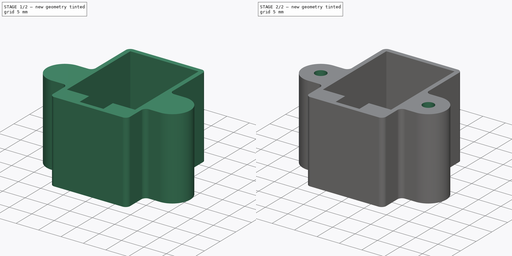
[diagram: build sequence overview — one tinted view per stage of 2, left to right]
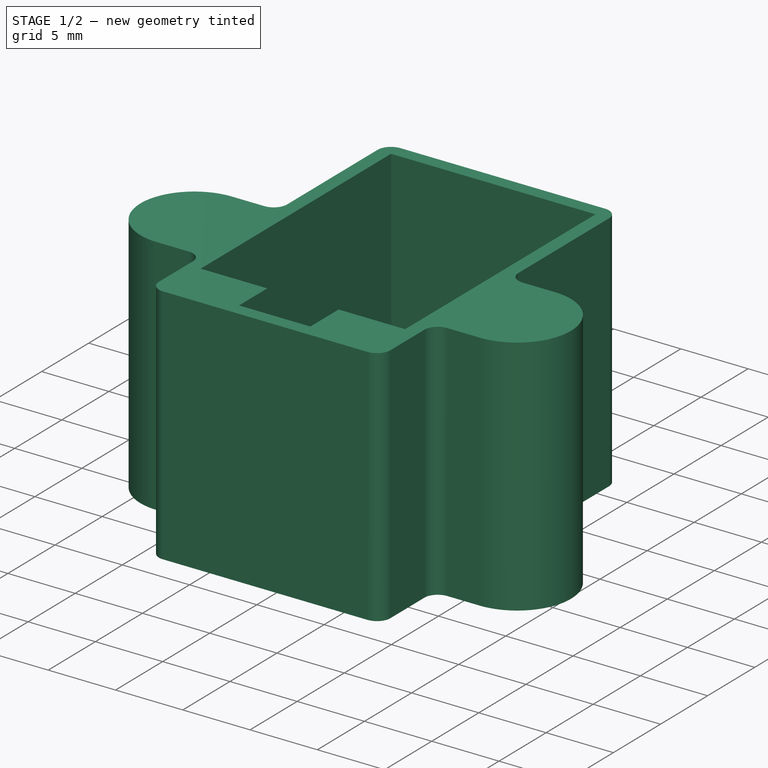
[diagram: stage 1 of 2 — iso view after this stage's code; geometry added in this stage tinted green]
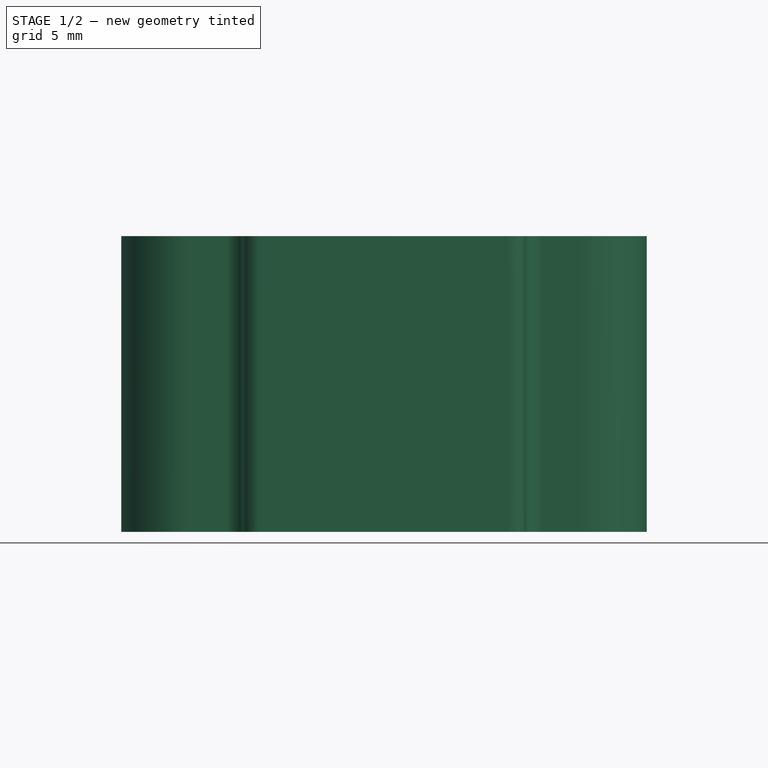
[diagram: stage 1 of 2 — front view after this stage's code; geometry added in this stage tinted green]
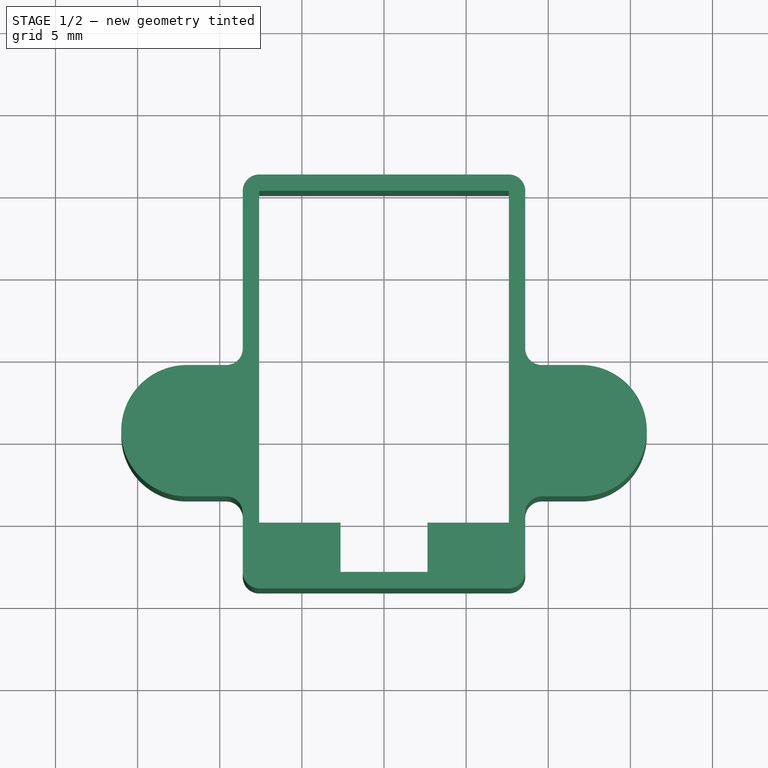
[diagram: stage 1 of 2 — top view after this stage's code; geometry added in this stage tinted green]
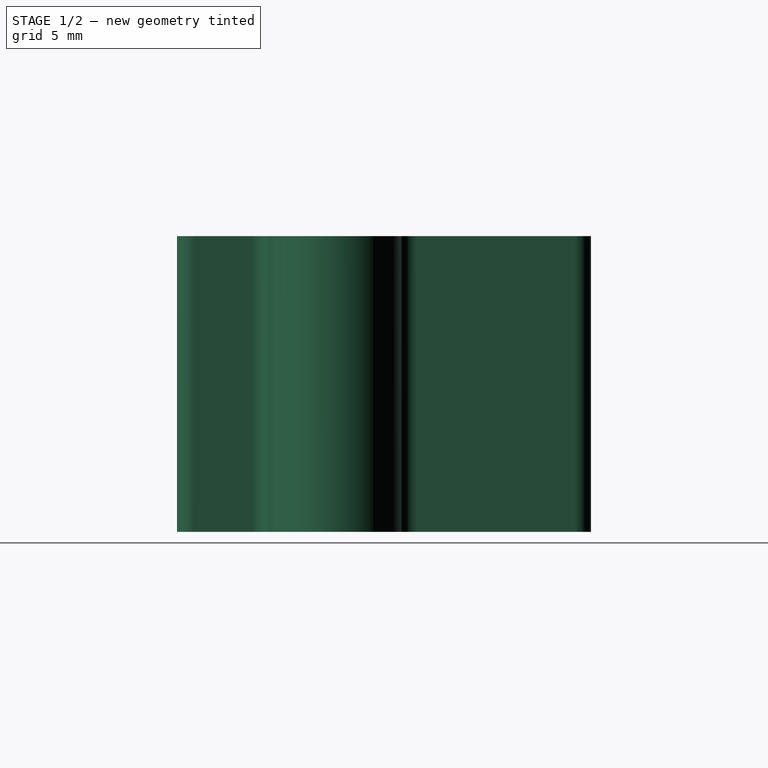
[diagram: stage 1 of 2 — right view after this stage's code; geometry added in this stage tinted green]
FCSTD DOCUMENT  (FreeCAD 0.16R6706 (Git))
Label: Guide-Prise-001
License: All rights reserved
LicenseURL: http://en.wikipedia.org/wiki/All_rights_reserved
objects: Part::Feature×2, Sketcher::SketchObject×2, PartDesign::Pad×1, PartDesign::Pocket×1
note: 8 computed .brp shape members not serialized (recipe doc carries the construction recipe); baked Part::Feature solids carry a one-line shape summary decoded from their .brp

FEATURE [Part::Feature] Part__Feature  label="Fusion005"
  Placement = pos=(-14,-27.5,0) rot=(0,0,1;0rad)
  shape: bbox 94.66 x 83.39 x 5.3 mm, 360 faces (baked)
FEATURE [Sketcher::SketchObject] Sketch005  label="ISP-6"
  Placement = pos=(0,0,11.45) rot=(0,0,1;0rad)
  sketch-geometry (32):
    g0: LineSegment StartX=-7.6 StartY=10.1 StartZ=0 EndX=-7.6 EndY=-10.1 EndZ=0
    g1: LineSegment StartX=-7.6 StartY=-10.1 StartZ=0 EndX=-2.65 EndY=-10.1 EndZ=0
    g2: LineSegment StartX=-2.65 StartY=-10.1 StartZ=0 EndX=-2.65 EndY=-13.1 EndZ=0
    g3: LineSegment StartX=-2.65 StartY=-13.1 StartZ=0 EndX=2.65 EndY=-13.1 EndZ=0
    g4: LineSegment StartX=2.65 StartY=-13.1 StartZ=0 EndX=2.65 EndY=-10.1 EndZ=0
    g5: LineSegment StartX=2.65 StartY=-10.1 StartZ=0 EndX=7.6 EndY=-10.1 EndZ=0
    g6: LineSegment StartX=7.6 StartY=-10.1 StartZ=0 EndX=7.6 EndY=10.1 EndZ=0
    g7: LineSegment StartX=7.6 StartY=10.1 StartZ=0 EndX=-7.6 EndY=10.1 EndZ=0
    g8: Circle [constr] CenterX=0 CenterY=0 CenterZ=0 NormalX=0 NormalY=0 NormalZ=1 Radius=12.64
    g9: LineSegment StartX=-7.6 StartY=11.1 StartZ=0 EndX=7.6 EndY=11.1 EndZ=0
    g10: LineSegment StartX=8.6 StartY=10.1 StartZ=0 EndX=8.6 EndY=0.5 EndZ=0
    g11: LineSegment StartX=-8.6 StartY=0.5 StartZ=0 EndX=-8.6 EndY=10.1 EndZ=0
    g12: LineSegment [constr] StartX=-12 StartY=-4.5 StartZ=0 EndX=12 EndY=-4.5 EndZ=0
    g13: ArcOfCircle CenterX=-12 CenterY=-4.5 CenterZ=0 NormalX=0 NormalY=0 NormalZ=1 Radius=4 StartAngle=1.5708 EndAngle=4.71239
    g14: ArcOfCircle CenterX=12 CenterY=-4.5 CenterZ=0 NormalX=0 NormalY=0 NormalZ=1 Radius=4 StartAngle=4.71239 EndAngle=7.85398
    g15: LineSegment StartX=-12 StartY=-0.5 StartZ=0 EndX=-9.6 EndY=-0.5 EndZ=0
    g16: LineSegment StartX=9.6 StartY=-0.5 StartZ=0 EndX=12 EndY=-0.5 EndZ=0
    g17: LineSegment StartX=-12 StartY=-8.5 StartZ=0 EndX=-9.6 EndY=-8.5 EndZ=0
    g18: LineSegment StartX=-8.6 StartY=-9.5 StartZ=0 EndX=-8.6 EndY=-13.1 EndZ=0
    g19: LineSegment StartX=-7.6 StartY=-14.1 StartZ=0 EndX=7.6 EndY=-14.1 EndZ=0
    g20: LineSegment StartX=8.6 StartY=-13.1 StartZ=0 EndX=8.6 EndY=-9.5 EndZ=0
    g21: LineSegment StartX=9.6 StartY=-8.5 StartZ=0 EndX=12 EndY=-8.5 EndZ=0
    g22: ArcOfCircle CenterX=-9.6 CenterY=0.5 CenterZ=0 NormalX=0 NormalY=0 NormalZ=1 Radius=1 StartAngle=4.71239 EndAngle=6.28319
    g23: ArcOfCircle CenterX=9.6 CenterY=0.5 CenterZ=0 NormalX=0 NormalY=0 NormalZ=1 Radius=1 StartAngle=3.14159 EndAngle=4.71239
    g24: ArcOfCircle CenterX=9.6 CenterY=-9.5 CenterZ=0 NormalX=0 NormalY=0 NormalZ=1 Radius=1 StartAngle=1.5708 EndAngle=3.14159
    g25: ArcOfCircle CenterX=7.6 CenterY=-13.1 CenterZ=0 NormalX=0 NormalY=0 NormalZ=1 Radius=1 StartAngle=4.71239 EndAngle=6.28319
    g26: ArcOfCircle CenterX=-7.6 CenterY=-13.1 CenterZ=0 NormalX=0 NormalY=0 NormalZ=1 Radius=1 StartAngle=3.14159 EndAngle=4.71239
    g27: ArcOfCircle CenterX=-9.6 CenterY=-9.5 CenterZ=0 NormalX=0 NormalY=0 NormalZ=1 Radius=1 StartAngle=0 EndAngle=1.5708
    g28: ArcOfCircle CenterX=-7.6 CenterY=10.1 CenterZ=0 NormalX=0 NormalY=0 NormalZ=1 Radius=1 StartAngle=1.5708 EndAngle=3.14159
    g29: ArcOfCircle CenterX=7.6 CenterY=10.1 CenterZ=0 NormalX=0 NormalY=0 NormalZ=1 Radius=1 StartAngle=0 EndAngle=1.5708
    g30: LineSegment [constr] StartX=-7.6 StartY=-10.1 StartZ=0 EndX=-7.6 EndY=-13.1 EndZ=0
    g31: LineSegment [constr] StartX=7.6 StartY=-10.1 StartZ=0 EndX=7.6 EndY=-13.1 EndZ=0
  constraints (82):
    c: Vertical(g0)
    c: Coincident(g0,g1)
    c: Horizontal(g1)
    c: Coincident(g1,g2)
    c: Vertical(g2)
    c: Coincident(g2,g3)
    c: Horizontal(g3)
    c: Coincident(g3,g4)
    c: Vertical(g4)
    c: Coincident(g4,g5)
    c: Horizontal(g5)
    c: Coincident(g5,g6)
    c: Vertical(g6)
    c: Coincident(g6,g7)
    c: Horizontal(g7)
    c: Coincident(g0,g7)
    c: Equal(g5,g1)
    c: Equal(g4,g2)
    c: DistanceY(g4,g4) = 3
    c: DistanceY(g6,g6) = 20.2
    c: DistanceX(g7,g7) = 15.2
    c: DistanceX(g3,g3) = 5.3
    c: PointOnObject(g0,g8)
    c: PointOnObject(g6,g8)
    c: PointOnObject(g5,g8)
    c: Coincident(g8,g-1)
    c: Horizontal(g9)
    c: Vertical(g10)
    c: Vertical(g11)
    c: Horizontal(g12)
    c: DistanceX(g12,g12) = 24
    c: DistanceX(g12) = 12
    c: DistanceY(g12) = -4.5
    c: Coincident(g13,g12)
    c: Coincident(g14,g12)
    c: Horizontal(g15)
    c: Horizontal(g16)
    c: Horizontal(g17)
    c: Horizontal(g21)
    c: Tangent(g21,g14) = -1.5708
    c: Horizontal(g19)
    c: Tangent(g13,g17) = -1.5708
    c: Tangent(g13,g15) = 1.5708
    c: Coincident(g14,g16)
    c: Tangent(g11,g22) = -1.5708
    c: Tangent(g15,g22) = -1.5708
    c: Tangent(g10,g23) = -1.5708
    c: Tangent(g16,g23) = -1.5708
    c: Tangent(g20,g24) = 1.5708
    c: Tangent(g21,g24) = 1.5708
    c: Tangent(g19,g25) = -1.5708
    c: Tangent(g20,g25) = -1.5708
    c: Tangent(g18,g26) = -1.5708
    c: Tangent(g19,g26) = -1.5708
    c: Tangent(g17,g27) = 1.5708
    c: Tangent(g18,g27) = 1.5708
    c: Tangent(g9,g28) = 1.5708
    c: Tangent(g11,g28) = 1.5708
    c: Tangent(g9,g29) = 1.5708
    c: Tangent(g10,g29) = 1.5708
    c: Radius(g28) = 1
    c: Equal(g28,g29)
    c: Equal(g28,g23)
    c: Equal(g28,g22)
    c: Equal(g28,g27)
    c: Equal(g28,g24)
    c: Equal(g28,g25)
    c: Equal(g28,g26)
    c: Coincident(g29,g6)
    c: Coincident(g28,g0)
    c: Vertical(g20)
    c: Vertical(g18)
    c: Coincident(g30,g0)
    c: Coincident(g30,g26)
    c: Coincident(g31,g5)
    c: Coincident(g31,g25)
    c: Vertical(g31)
    c: Vertical(g30)
    c: Equal(g30,g4)
    c: Tangent(g14,g16) = 1.5708
    c: Radius(g14) = 4
    c: Equal(g14,g13)
FEATURE [Part::Feature] Part__Feature001  label="Pocket003"
  Placement = pos=(-14,-27.5,0) rot=(0,0,1;0rad)
  shape: bbox 94.66 x 83.39 x 29 mm, 53 faces (baked)
FEATURE [PartDesign::Pad] Pad
  Length = 18
  Length2 = 100
  Placement = pos=(0,0,11.45) rot=(0,0,1;0rad)
  Sketch = -> Sketch005
  Type = 0
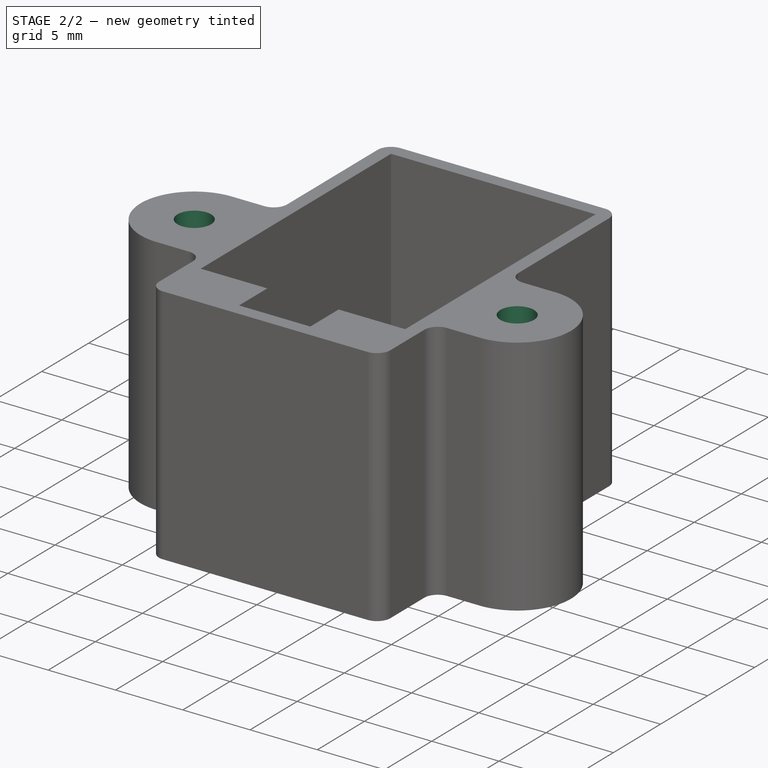
[diagram: stage 2 of 2 — iso view after this stage's code; geometry added in this stage tinted green]
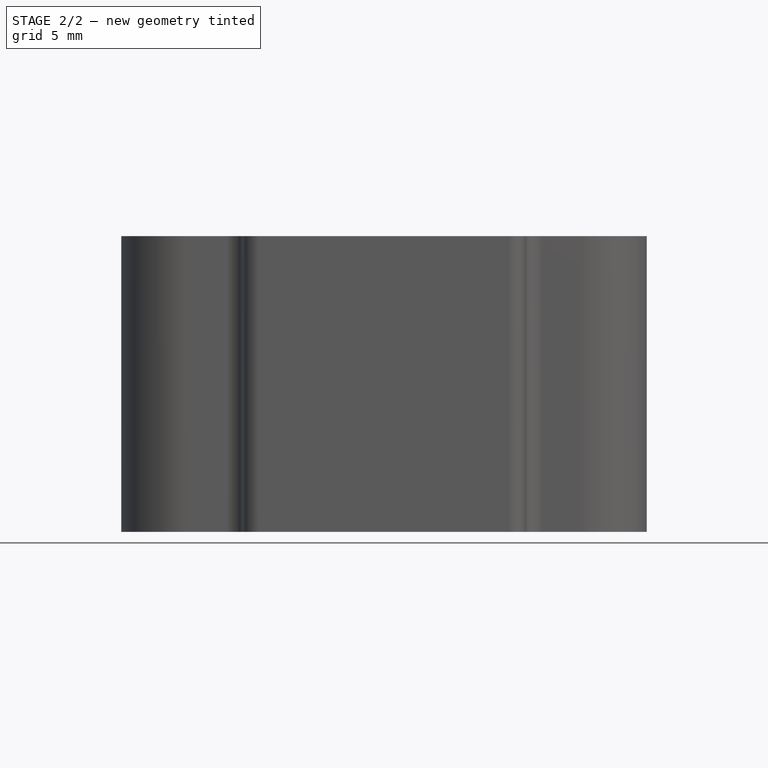
[diagram: stage 2 of 2 — front view after this stage's code; geometry added in this stage tinted green]
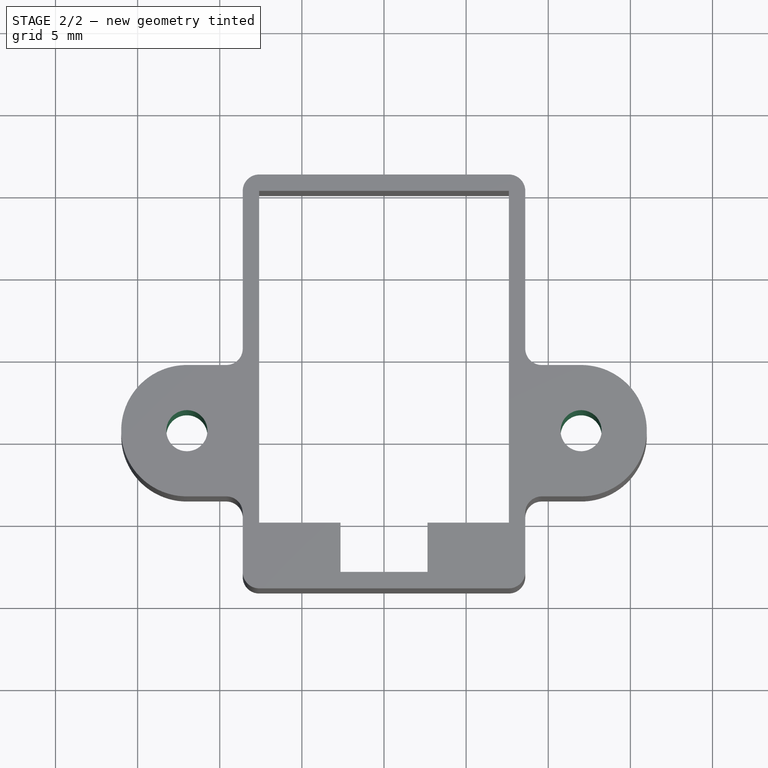
[diagram: stage 2 of 2 — top view after this stage's code; geometry added in this stage tinted green]
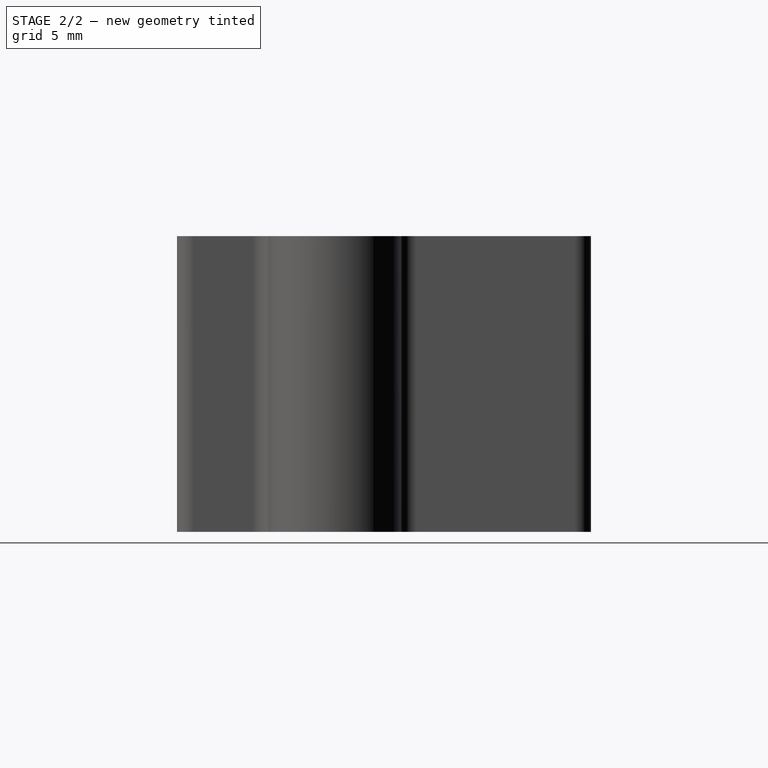
[diagram: stage 2 of 2 — right view after this stage's code; geometry added in this stage tinted green]
FEATURE [Sketcher::SketchObject] Sketch
  Placement = pos=(0,0,29.45) rot=(0,0,1;0rad)
  Support = -> Pad [Face30]
  sketch-geometry (3):
    g0: LineSegment [constr] StartX=-12 StartY=-4.5 StartZ=0 EndX=12 EndY=-4.5 EndZ=0
    g1: Circle CenterX=-12 CenterY=-4.5 CenterZ=0 NormalX=0 NormalY=0 NormalZ=1 Radius=1.25
    g2: Circle CenterX=12 CenterY=-4.5 CenterZ=0 NormalX=0 NormalY=0 NormalZ=1 Radius=1.25
  constraints (8):
    c: Horizontal(g0)
    c: DistanceX(g0) = 12
    c: DistanceY(g0) = -4.5
    c: DistanceX(g0,g0) = 24
    c: Coincident(g1,g0)
    c: Radius(g2) = 1.25
    c: Equal(g2,g1)
    c: Coincident(g0,g2)
FEATURE [PartDesign::Pocket] Pocket
  Length = 18
  Placement = pos=(0,0,11.45) rot=(0,0,1;0rad)
  Sketch = -> Sketch
  Type = 0
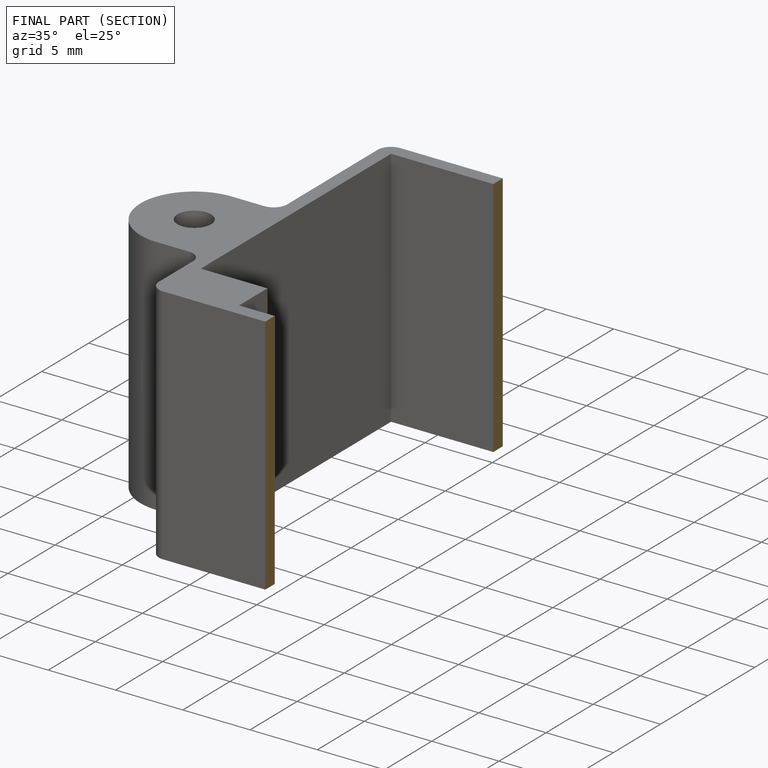
[diagram: finished part — half-section view (interior)]
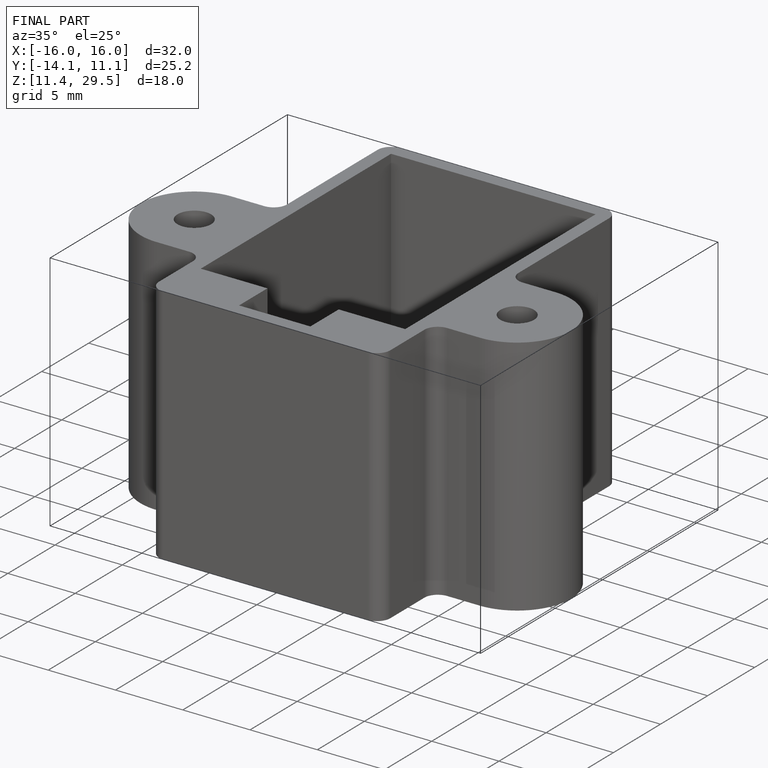
[diagram: finished part — iso view with bounding-box wireframe]
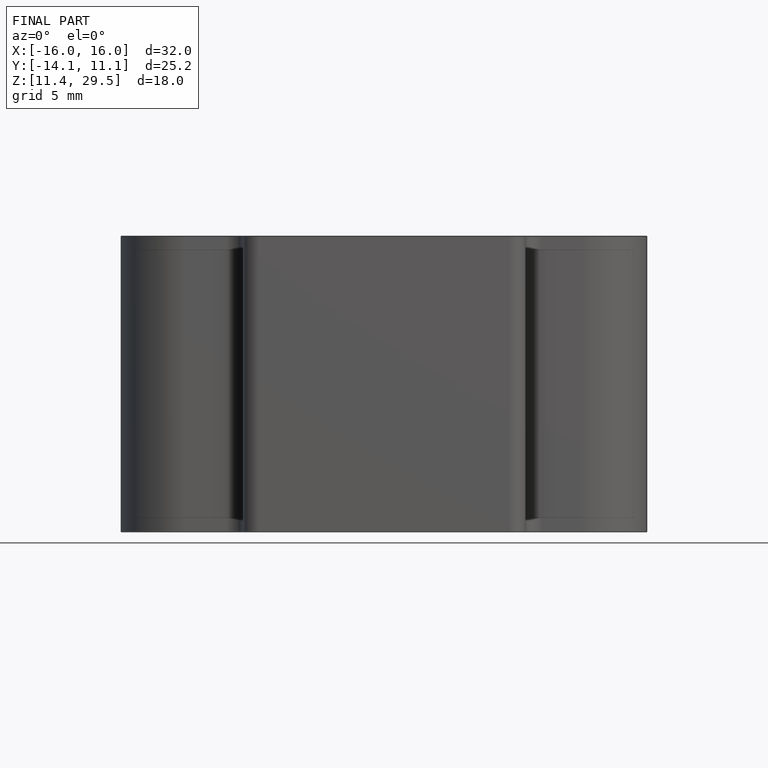
[diagram: finished part — front view with bounding-box wireframe]
